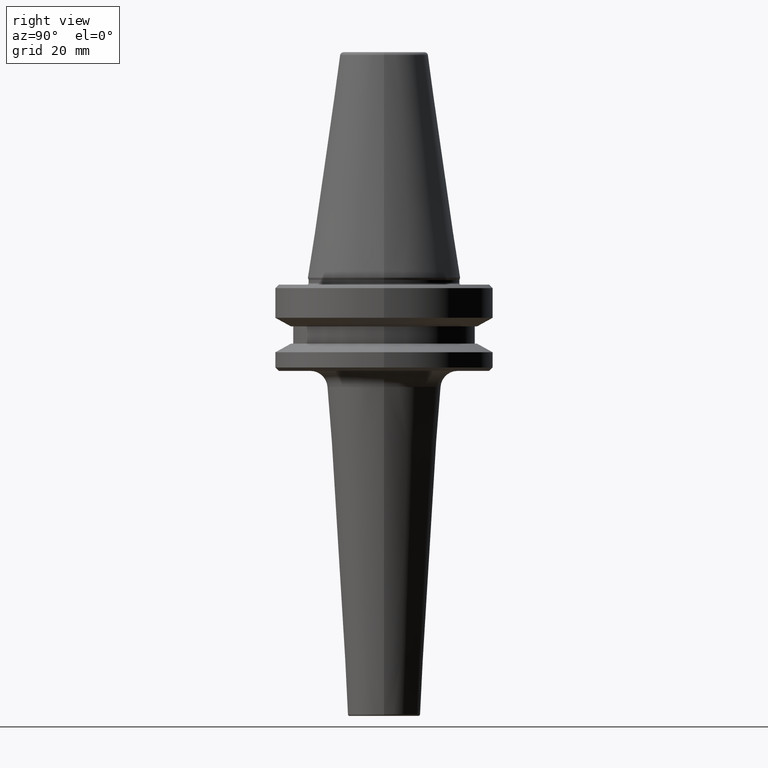
[diagram: clean part render]
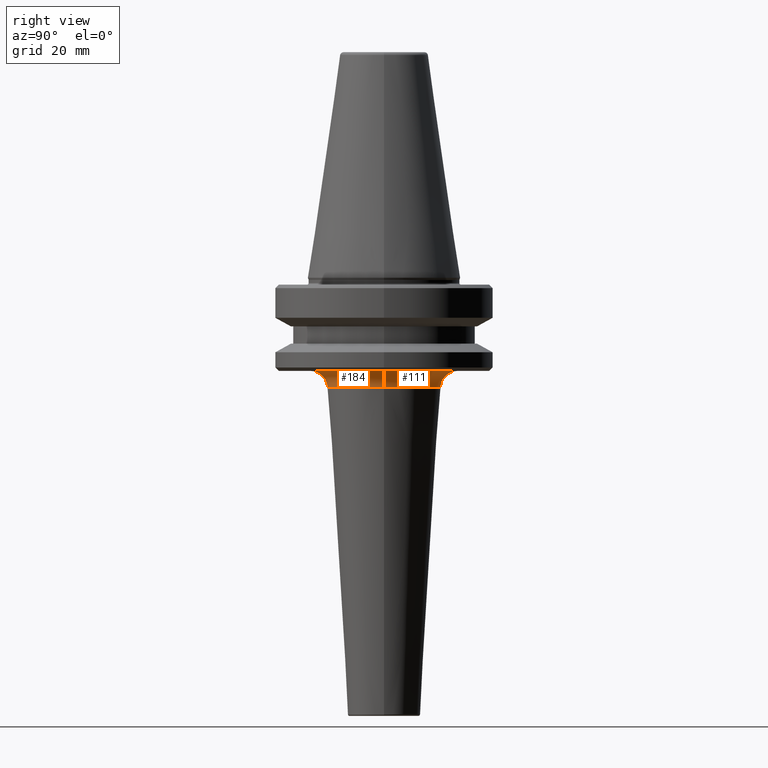
[diagram: same view with one multi-face feature highlighted, each face labeled with its STEP entity id]
A machine part, right view. The highlighted faces form ONE feature: a constant-radius fillet chain: 2 tangent blend faces with common blend radius 5 mm. The faces share edges in the B-rep.
Their STEP definitions:
[1] entity #111 (Torus):
#17 = EDGE_CURVE ( 'NONE', #694, #832, #499, .T. ) ;
#86 = DIRECTION ( 'NONE',  ( 1.000000000000000000, 0.0000000000000000000, 0.0000000000000000000 ) ) ;
#93 = DIRECTION ( 'NONE',  ( 1.224646799147353200E-016, 1.000000000000000000, 0.0000000000000000000 ) ) ;
#111 = ADVANCED_FACE ( 'NONE', ( #915 ), #825, .F. ) ;
#169 = ORIENTED_EDGE ( 'NONE', *, *, #913, .T. ) ;
#181 = AXIS2_PLACEMENT_3D ( 'NONE', #667, #93, #586 ) ;
#240 = CARTESIAN_POINT ( 'NONE',  ( 16.50000000000000000, 0.0000000000000000000, -97.08587304971779000 ) ) ;
#275 = ORIENTED_EDGE ( 'NONE', *, *, #337, .F. ) ;
#290 = VERTEX_POINT ( 'NONE', #240 ) ;
#332 = CARTESIAN_POINT ( 'NONE',  ( -21.49012266974484200, 2.631780994078700200E-015, -92.40000000000800600 ) ) ;
#337 = EDGE_CURVE ( 'NONE', #709, #694, #556, .T. ) ;
#343 = ORIENTED_EDGE ( 'NONE', *, *, #17, .F. ) ;
#381 = EDGE_CURVE ( 'NONE', #290, #832, #785, .T. ) ;
#456 = CIRCLE ( 'NONE', #497, 5.000000000000004400 ) ;
#472 = DIRECTION ( 'NONE',  ( 0.0000000000000000000, 0.0000000000000000000, -1.000000000000000000 ) ) ;
#495 = DIRECTION ( 'NONE',  ( -0.0000000000000000000, -0.0000000000000000000, 1.000000000000000000 ) ) ;
#497 = AXIS2_PLACEMENT_3D ( 'NONE', #939, #654, #472 ) ;
#499 = CIRCLE ( 'NONE', #181, 5.000000000000004400 ) ;
#548 = DIRECTION ( 'NONE',  ( -0.0000000000000000000, -0.0000000000000000000, 1.000000000000000000 ) ) ;
#554 = CARTESIAN_POINT ( 'NONE',  ( 0.0000000000000000000, 0.0000000000000000000, -97.40000000000800600 ) ) ;
#556 = CIRCLE ( 'NONE', #1023, 21.49012266974484200 ) ;
#586 = DIRECTION ( 'NONE',  ( -1.000000000000000000, 1.224646799147353500E-016, 0.0000000000000000000 ) ) ;
#622 = CARTESIAN_POINT ( 'NONE',  ( -16.50000000000000000, 2.326224106335916000E-015, -97.08587304971779000 ) ) ;
#654 = DIRECTION ( 'NONE',  ( 0.0000000000000000000, -1.000000000000000000, 0.0000000000000000000 ) ) ;
#658 = DIRECTION ( 'NONE',  ( 1.000000000000000000, 0.0000000000000000000, 0.0000000000000000000 ) ) ;
#665 = ORIENTED_EDGE ( 'NONE', *, *, #381, .T. ) ;
#667 = CARTESIAN_POINT ( 'NONE',  ( -21.49012266974484200, 2.631780994078699800E-015, -97.40000000000800600 ) ) ;
#694 = VERTEX_POINT ( 'NONE', #332 ) ;
#709 = VERTEX_POINT ( 'NONE', #722 ) ;
#722 = CARTESIAN_POINT ( 'NONE',  ( 21.49012266974484200, 0.0000000000000000000, -92.40000000000800600 ) ) ;
#784 = EDGE_LOOP ( 'NONE', ( #343, #275, #169, #665 ) ) ;
#785 = CIRCLE ( 'NONE', #840, 16.50000000000000000 ) ;
#791 = DIRECTION ( 'NONE',  ( 1.000000000000000000, 0.0000000000000000000, 0.0000000000000000000 ) ) ;
#825 = TOROIDAL_SURFACE ( 'NONE', #987, 21.49012266974484200, 5.000000000000003600 ) ;
#832 = VERTEX_POINT ( 'NONE', #622 ) ;
#840 = AXIS2_PLACEMENT_3D ( 'NONE', #976, #1054, #86 ) ;
#890 = CARTESIAN_POINT ( 'NONE',  ( 0.0000000000000000000, 0.0000000000000000000, -92.40000000000800600 ) ) ;
#913 = EDGE_CURVE ( 'NONE', #709, #290, #456, .T. ) ;
#915 = FACE_OUTER_BOUND ( 'NONE', #784, .T. ) ;
#939 = CARTESIAN_POINT ( 'NONE',  ( 21.49012266974484200, 0.0000000000000000000, -97.40000000000800600 ) ) ;
#976 = CARTESIAN_POINT ( 'NONE',  ( 0.0000000000000000000, 0.0000000000000000000, -97.08587304971779000 ) ) ;
#987 = AXIS2_PLACEMENT_3D ( 'NONE', #554, #548, #791 ) ;
#1023 = AXIS2_PLACEMENT_3D ( 'NONE', #890, #495, #658 ) ;
#1054 = DIRECTION ( 'NONE',  ( -0.0000000000000000000, -0.0000000000000000000, 1.000000000000000000 ) ) ;
[2] entity #184 (Torus):
#17 = EDGE_CURVE ( 'NONE', #694, #832, #499, .T. ) ;
#37 = EDGE_CURVE ( 'NONE', #832, #290, #897, .T. ) ;
#39 = FACE_OUTER_BOUND ( 'NONE', #1002, .T. ) ;
#93 = DIRECTION ( 'NONE',  ( 1.224646799147353200E-016, 1.000000000000000000, 0.0000000000000000000 ) ) ;
#102 = AXIS2_PLACEMENT_3D ( 'NONE', #440, #974, #405 ) ;
#137 = ORIENTED_EDGE ( 'NONE', *, *, #487, .F. ) ;
#181 = AXIS2_PLACEMENT_3D ( 'NONE', #667, #93, #586 ) ;
#184 = ADVANCED_FACE ( 'NONE', ( #39 ), #284, .F. ) ;
#240 = CARTESIAN_POINT ( 'NONE',  ( 16.50000000000000000, 0.0000000000000000000, -97.08587304971779000 ) ) ;
#250 = DIRECTION ( 'NONE',  ( 1.000000000000000000, 0.0000000000000000000, 0.0000000000000000000 ) ) ;
#271 = CIRCLE ( 'NONE', #102, 21.49012266974484200 ) ;
#284 = TOROIDAL_SURFACE ( 'NONE', #1009, 21.49012266974484200, 5.000000000000003600 ) ;
#290 = VERTEX_POINT ( 'NONE', #240 ) ;
#332 = CARTESIAN_POINT ( 'NONE',  ( -21.49012266974484200, 2.631780994078700200E-015, -92.40000000000800600 ) ) ;
#338 = CARTESIAN_POINT ( 'NONE',  ( 0.0000000000000000000, 0.0000000000000000000, -97.40000000000800600 ) ) ;
#352 = DIRECTION ( 'NONE',  ( 1.000000000000000000, 0.0000000000000000000, 0.0000000000000000000 ) ) ;
#378 = ORIENTED_EDGE ( 'NONE', *, *, #913, .F. ) ;
#405 = DIRECTION ( 'NONE',  ( 1.000000000000000000, 0.0000000000000000000, 0.0000000000000000000 ) ) ;
#414 = DIRECTION ( 'NONE',  ( -0.0000000000000000000, -0.0000000000000000000, 1.000000000000000000 ) ) ;
#430 = CARTESIAN_POINT ( 'NONE',  ( 0.0000000000000000000, 0.0000000000000000000, -97.08587304971779000 ) ) ;
#440 = CARTESIAN_POINT ( 'NONE',  ( 0.0000000000000000000, 0.0000000000000000000, -92.40000000000800600 ) ) ;
#454 = ORIENTED_EDGE ( 'NONE', *, *, #17, .T. ) ;
#456 = CIRCLE ( 'NONE', #497, 5.000000000000004400 ) ;
#472 = DIRECTION ( 'NONE',  ( 0.0000000000000000000, 0.0000000000000000000, -1.000000000000000000 ) ) ;
#487 = EDGE_CURVE ( 'NONE', #694, #709, #271, .T. ) ;
#497 = AXIS2_PLACEMENT_3D ( 'NONE', #939, #654, #472 ) ;
#499 = CIRCLE ( 'NONE', #181, 5.000000000000004400 ) ;
#502 = DIRECTION ( 'NONE',  ( -0.0000000000000000000, -0.0000000000000000000, 1.000000000000000000 ) ) ;
#586 = DIRECTION ( 'NONE',  ( -1.000000000000000000, 1.224646799147353500E-016, 0.0000000000000000000 ) ) ;
#597 = ORIENTED_EDGE ( 'NONE', *, *, #37, .T. ) ;
#622 = CARTESIAN_POINT ( 'NONE',  ( -16.50000000000000000, 2.326224106335916000E-015, -97.08587304971779000 ) ) ;
#654 = DIRECTION ( 'NONE',  ( 0.0000000000000000000, -1.000000000000000000, 0.0000000000000000000 ) ) ;
#667 = CARTESIAN_POINT ( 'NONE',  ( -21.49012266974484200, 2.631780994078699800E-015, -97.40000000000800600 ) ) ;
#694 = VERTEX_POINT ( 'NONE', #332 ) ;
#709 = VERTEX_POINT ( 'NONE', #722 ) ;
#722 = CARTESIAN_POINT ( 'NONE',  ( 21.49012266974484200, 0.0000000000000000000, -92.40000000000800600 ) ) ;
#832 = VERTEX_POINT ( 'NONE', #622 ) ;
#897 = CIRCLE ( 'NONE', #943, 16.50000000000000000 ) ;
#913 = EDGE_CURVE ( 'NONE', #709, #290, #456, .T. ) ;
#939 = CARTESIAN_POINT ( 'NONE',  ( 21.49012266974484200, 0.0000000000000000000, -97.40000000000800600 ) ) ;
#943 = AXIS2_PLACEMENT_3D ( 'NONE', #430, #502, #352 ) ;
#974 = DIRECTION ( 'NONE',  ( -0.0000000000000000000, -0.0000000000000000000, 1.000000000000000000 ) ) ;
#1002 = EDGE_LOOP ( 'NONE', ( #137, #454, #597, #378 ) ) ;
#1009 = AXIS2_PLACEMENT_3D ( 'NONE', #338, #414, #250 ) ;